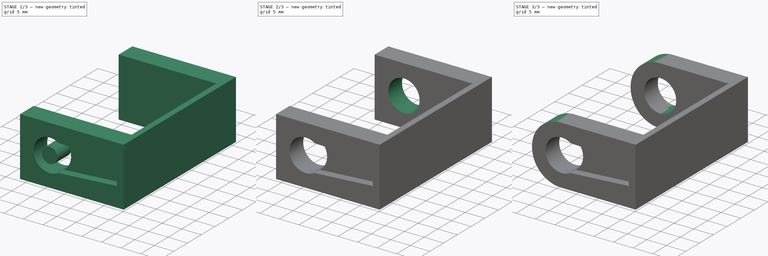
[diagram: build sequence overview — one tinted view per stage of 3, left to right]
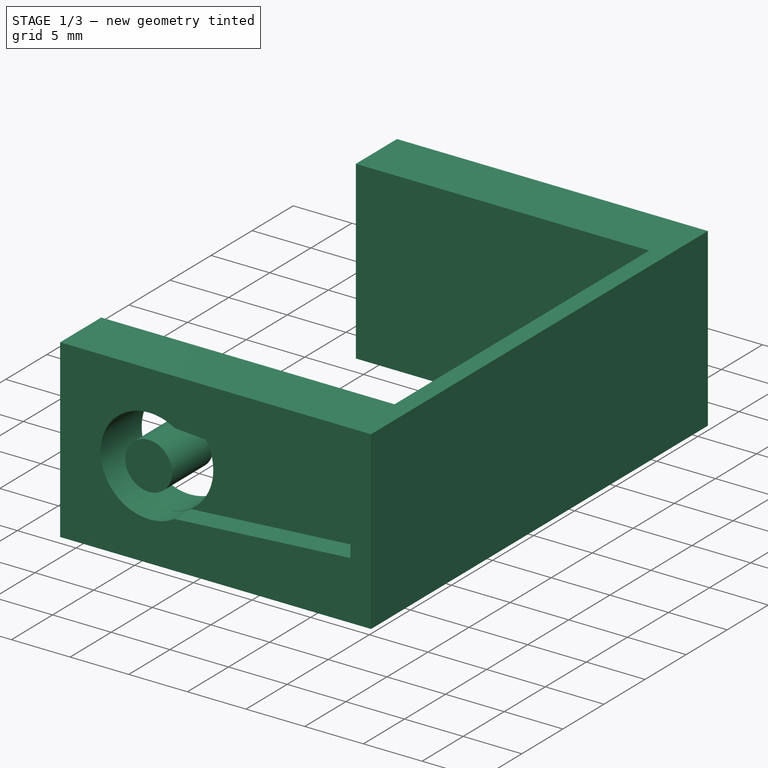
[diagram: stage 1 of 3 — iso view after this stage's code; geometry added in this stage tinted green]
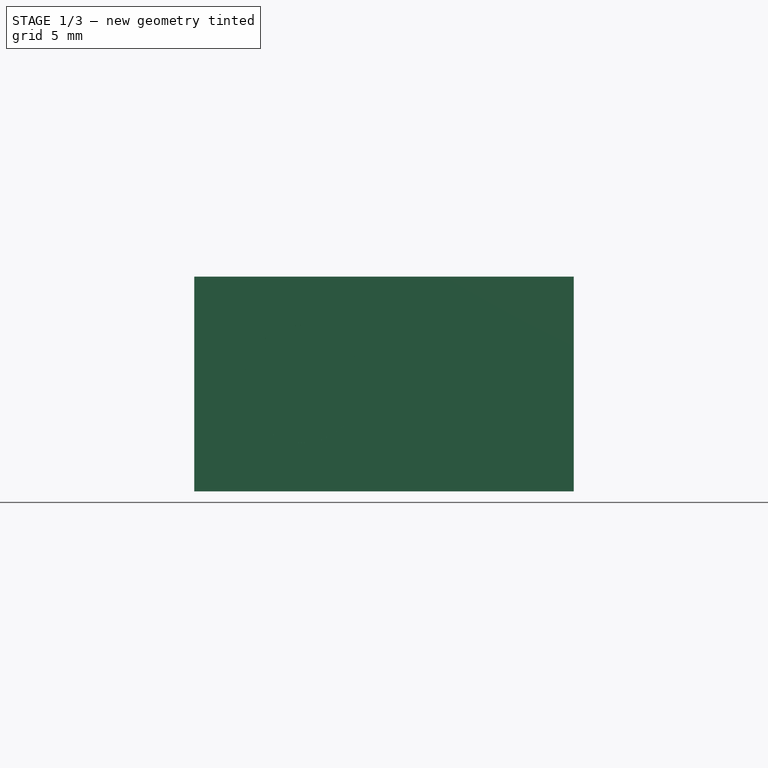
[diagram: stage 1 of 3 — front view after this stage's code; geometry added in this stage tinted green]
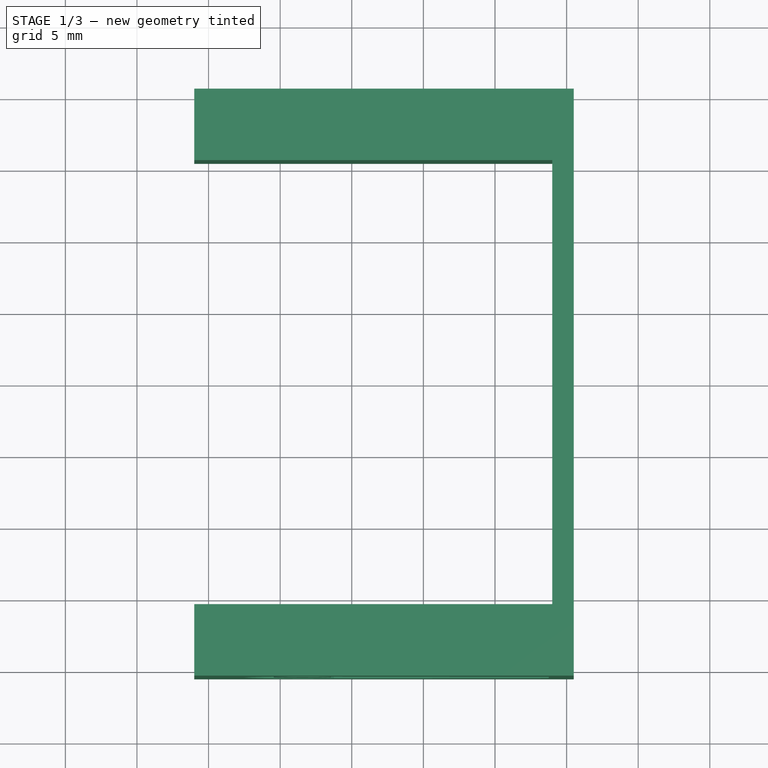
[diagram: stage 1 of 3 — top view after this stage's code; geometry added in this stage tinted green]
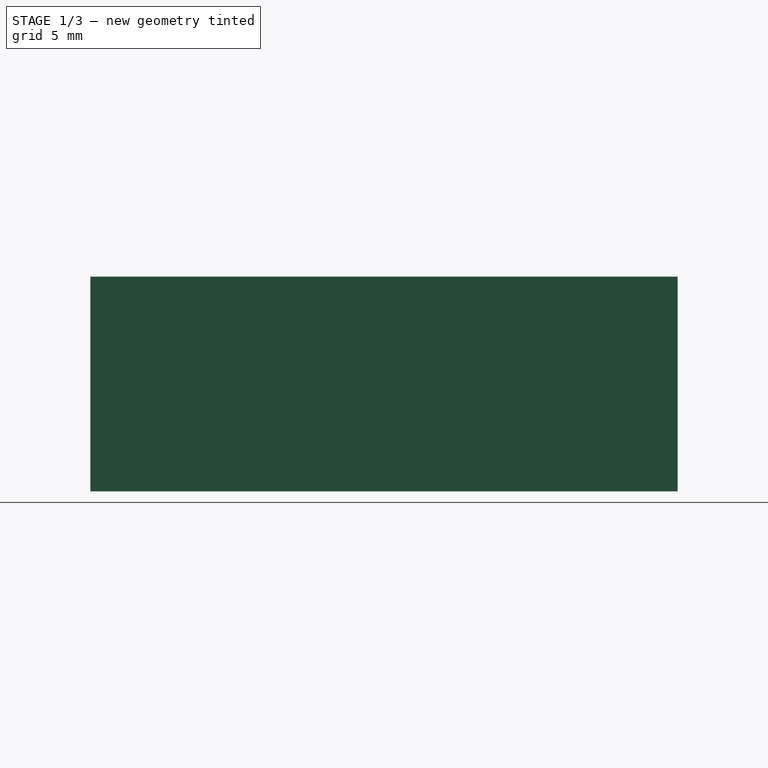
[diagram: stage 1 of 3 — right view after this stage's code; geometry added in this stage tinted green]
FCSTD DOCUMENT  (FreeCAD 0.18R4 (GitTag))
Label: enganche motor
License: All rights reserved
LicenseURL: http://en.wikipedia.org/wiki/All_rights_reserved
objects: Part::Cut×3, Part::Feature×2, Sketcher::SketchObject×1, PartDesign::Pad×1, PartDesign::Body×1, Part::Cylinder×1, Part::Fillet×1
note: 11 computed .brp shape members not serialized (recipe doc carries the construction recipe); baked Part::Feature solids carry a one-line shape summary decoded from their .brp

FEATURE [Part::Feature] Part__Feature001  label="arm_servo"
  Placement = pos=(8.75,-18.5,7.5) rot=(0.57735,-0.57735,0.57735;2.0944rad)
  shape: bbox 21.3 x 10 x 8.217 mm, 11 faces (baked)
FEATURE [Sketcher::SketchObject] Sketch
  MapMode = 5
  Support = -> [XY_Plane]
  sketch-geometry (8):
    g0: LineSegment StartX=0 StartY=20.5 StartZ=0 EndX=26.5 EndY=20.5 EndZ=0
    g1: LineSegment StartX=26.5 StartY=20.5 StartZ=0 EndX=26.5 EndY=-20.5 EndZ=0
    g2: LineSegment StartX=26.5 StartY=-20.5 StartZ=0 EndX=0 EndY=-20.5 EndZ=0
    g3: LineSegment StartX=0 StartY=-20.5 StartZ=0 EndX=0 EndY=-15.5 EndZ=0
    g4: LineSegment StartX=0 StartY=-15.5 StartZ=0 EndX=25 EndY=-15.5 EndZ=0
    g5: LineSegment StartX=25 StartY=-15.5 StartZ=0 EndX=25 EndY=15.5 EndZ=0
    g6: LineSegment StartX=25 StartY=15.5 StartZ=0 EndX=0 EndY=15.5 EndZ=0
    g7: LineSegment StartX=0 StartY=15.5 StartZ=0 EndX=0 EndY=20.5 EndZ=0
  constraints (23):
    c: Coincident(g0,g1)
    c: Coincident(g1,g2)
    c: Coincident(g2,g3)
    c: Coincident(g3,g4)
    c: Coincident(g4,g5)
    c: Coincident(g5,g6)
    c: Coincident(g6,g7)
    c: Horizontal(g2)
    c: Horizontal(g4)
    c: Horizontal(g6)
    c: Horizontal(g0)
    c: Vertical(g3)
    c: Vertical(g7)
    c: Vertical(g5)
    c: Vertical(g1)
    c: Coincident(g7,g0)
    c: Equal(g3,g7)
    c: DistanceY(g3,g3) = 5
    c: DistanceY(g5,g5) = 31
    c: Symmetric(g6,g3,g-1)
    c: DistanceX(g4,g4) = 25
    c: DistanceX(g4,g1) = 1.5
    c: PointOnObject(g6,g-2)
FEATURE [PartDesign::Pad] Pad
  Length = 15
  Length2 = 100
  Profile = -> Sketch
  Refine = true
  Type = 0
FEATURE [Part::Cut] Cut  label="mitad con brazo"
  Base = -> Body
  Refine = true
  Tool = -> Part__Feature001
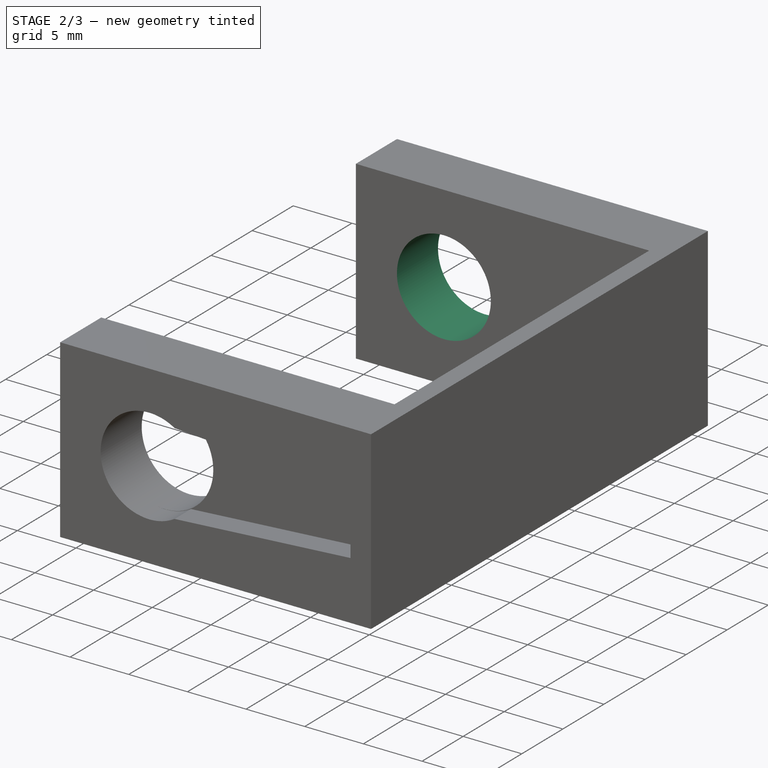
[diagram: stage 2 of 3 — iso view after this stage's code; geometry added in this stage tinted green]
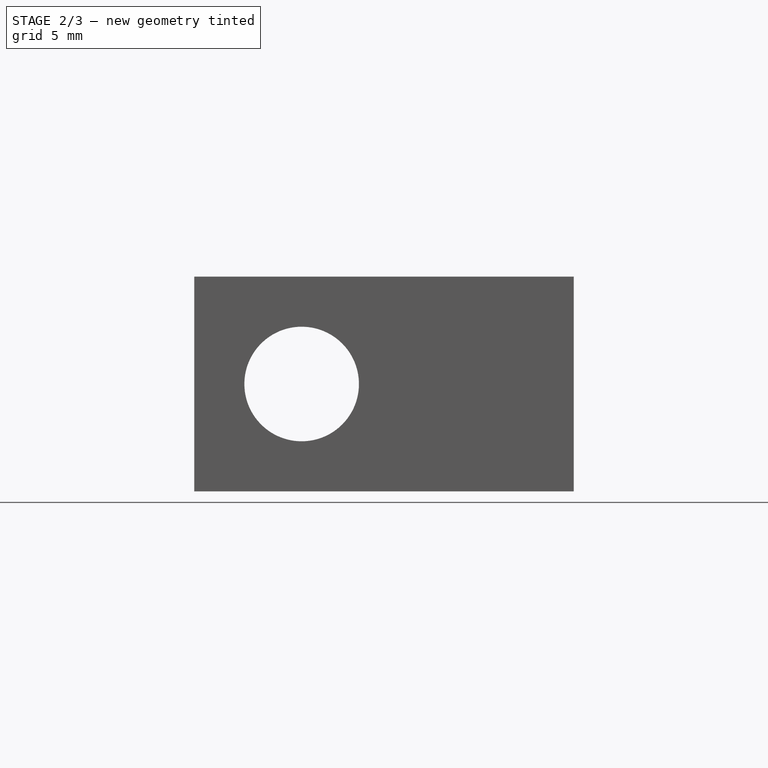
[diagram: stage 2 of 3 — front view after this stage's code; geometry added in this stage tinted green]
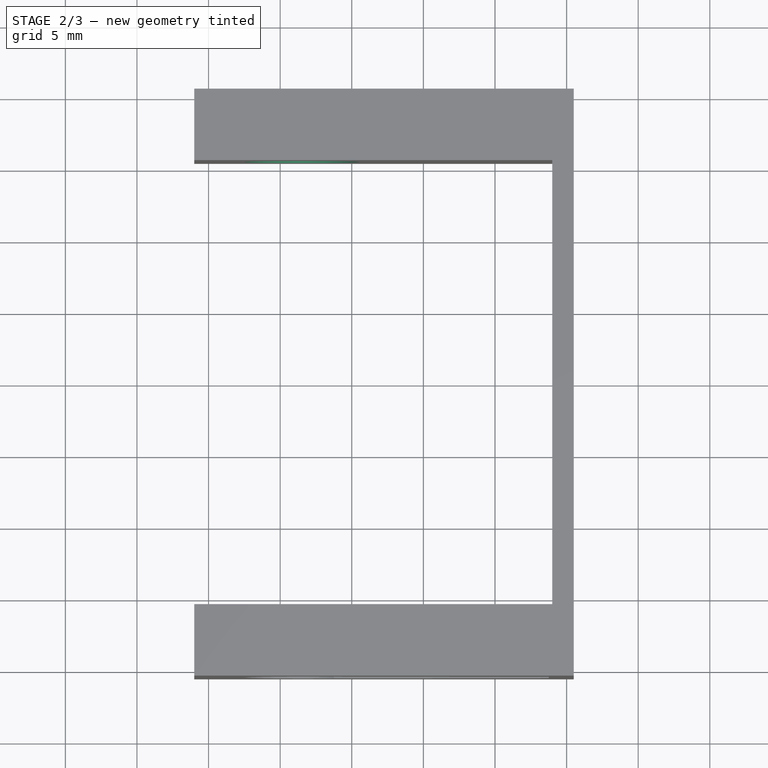
[diagram: stage 2 of 3 — top view after this stage's code; geometry added in this stage tinted green]
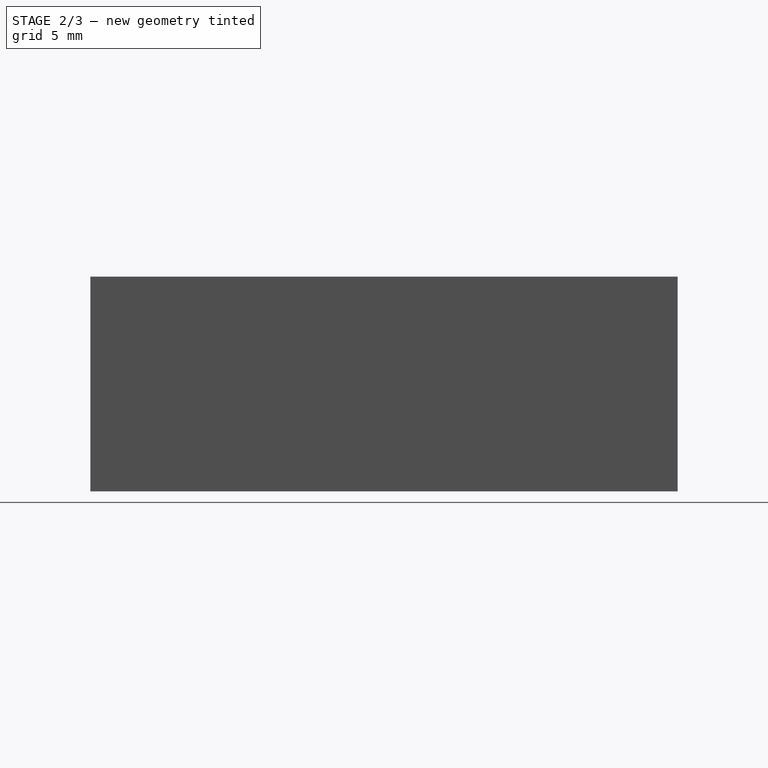
[diagram: stage 2 of 3 — right view after this stage's code; geometry added in this stage tinted green]
FEATURE [PartDesign::Body] Body  label="mitad union"
  Group = -> [Sketch,Pad]
  Origin = -> Origin
  Placement = pos=(-1,0,0) rot=(0,0,1;0rad)
  Tip = -> Pad
FEATURE [Part::Cylinder] Cylinder  label="Cilindro"
  Angle = 360
  AttacherType = Attacher::AttachEngine3D
  Height = 50
  Placement = pos=(6.5,23,7.5) rot=(0.57735,0.57735,-0.57735;2.0944rad)
  Radius = 4
FEATURE [Part::Cut] Cut001  label="mitad con cilindro"
  Base = -> Cut
  Refine = true
  Tool = -> Cylinder
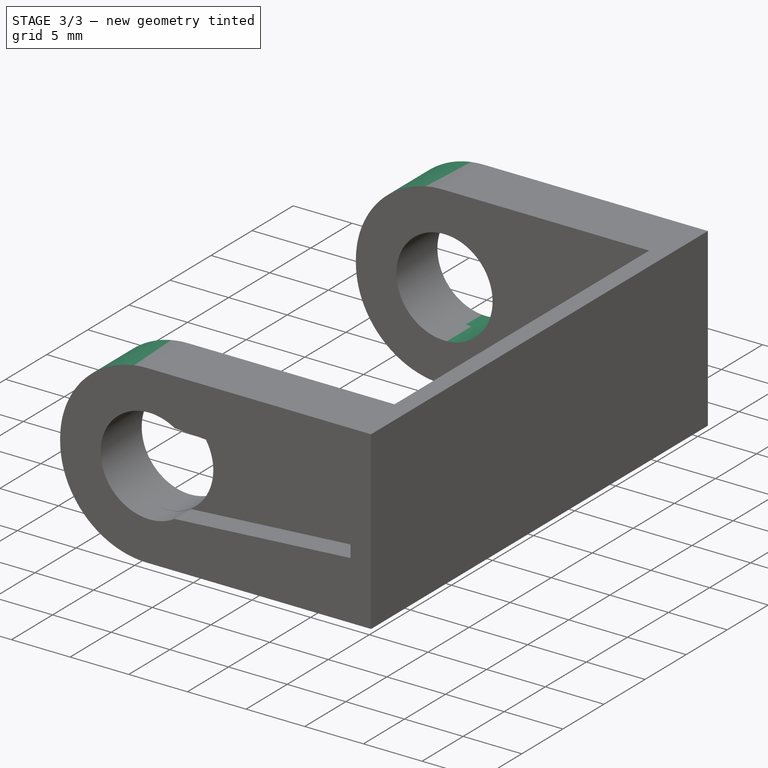
[diagram: stage 3 of 3 — iso view after this stage's code; geometry added in this stage tinted green]
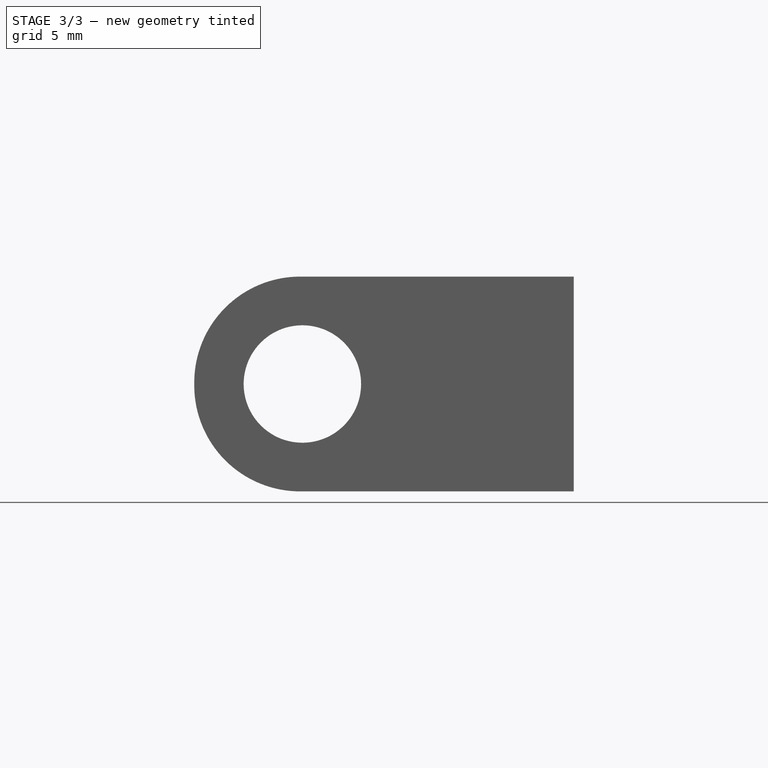
[diagram: stage 3 of 3 — front view after this stage's code; geometry added in this stage tinted green]
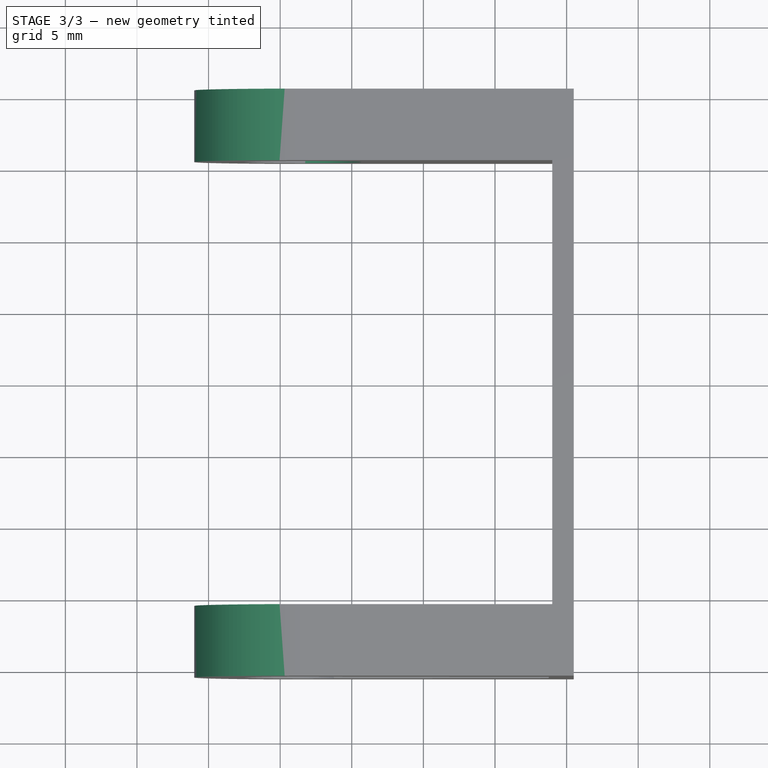
[diagram: stage 3 of 3 — top view after this stage's code; geometry added in this stage tinted green]
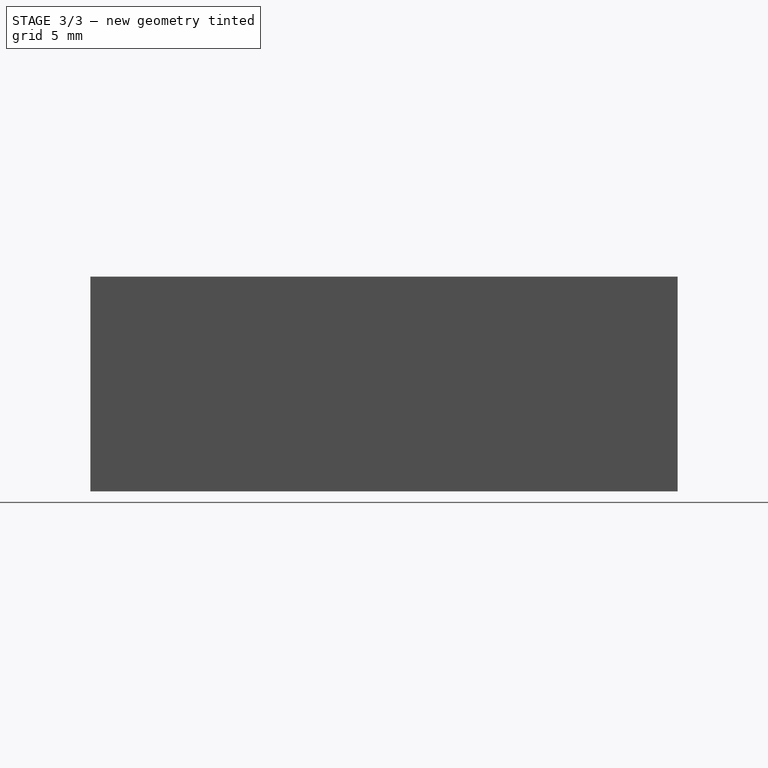
[diagram: stage 3 of 3 — right view after this stage's code; geometry added in this stage tinted green]
FEATURE [Part::Feature] Part__Feature002  label="arm_servo001"
  Placement = pos=(8.75,18.5,7.5) rot=(-0.57735,0.57735,0.57735;2.0944rad)
  shape: bbox 21.3 x 10 x 8.217 mm, 11 faces (baked)
FEATURE [Part::Cut] Cut002  label="mitad 2 perforaciones"
  Base = -> Cut001
  Refine = true
  Tool = -> Part__Feature002
FEATURE [Part::Fillet] Fillet  label="enganche motor"
  Base = -> Cut002
  Edges = 4 edges r=7.4: [Edge12,Edge13,Edge16,Edge22]
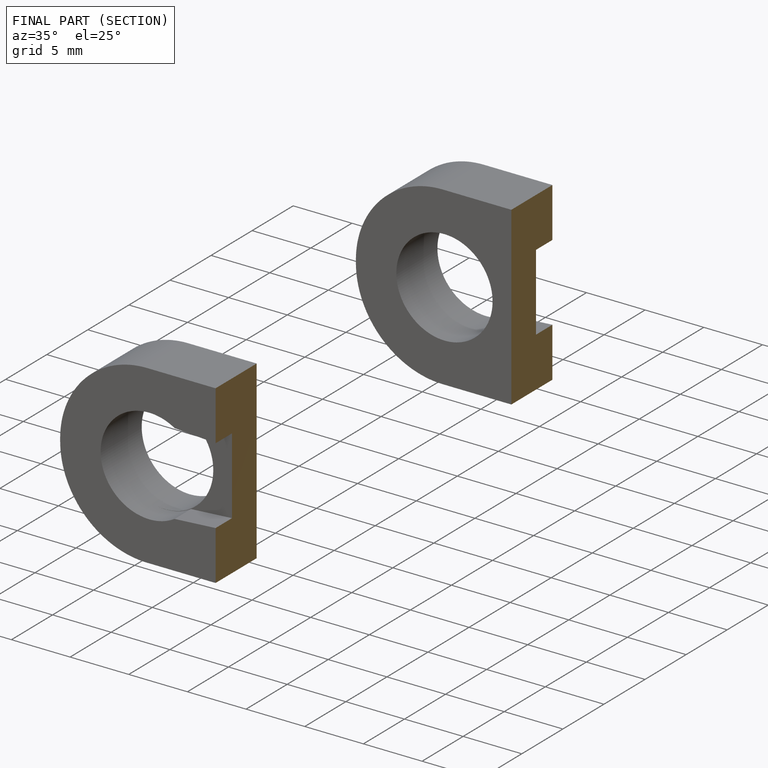
[diagram: finished part — half-section view (interior)]
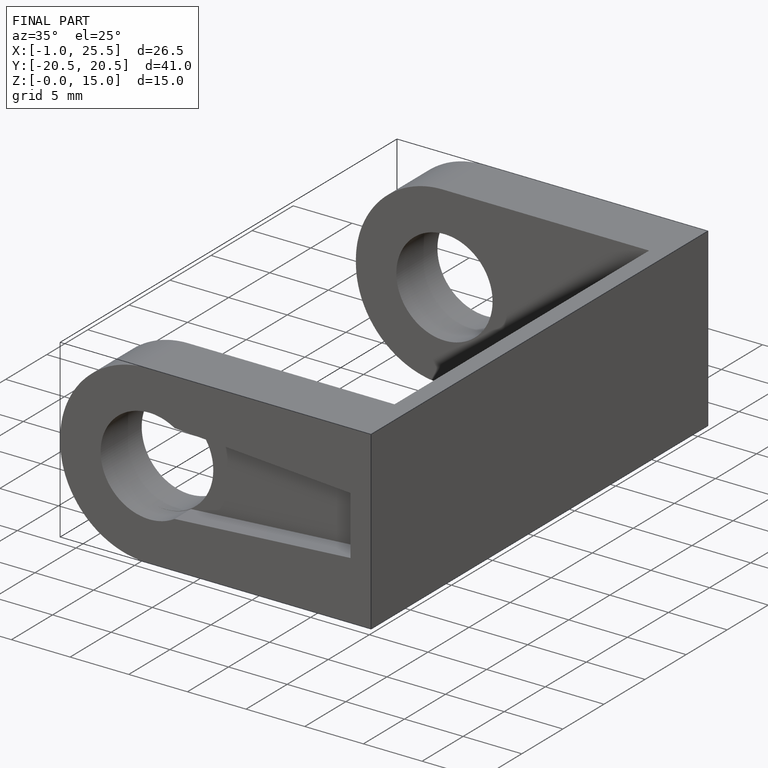
[diagram: finished part — iso view with bounding-box wireframe]
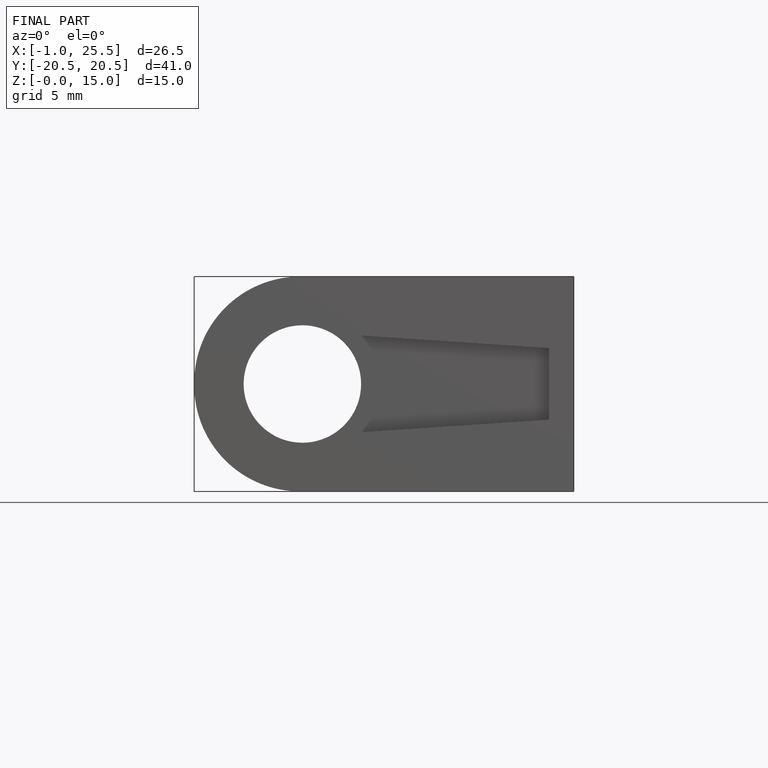
[diagram: finished part — front view with bounding-box wireframe]
